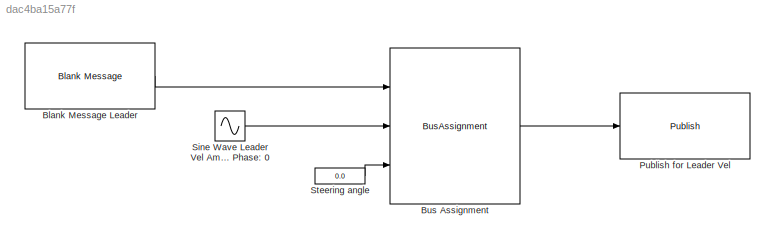
MODEL slx_dac4ba15a77f
KIND model
CONFIG AbsTol = auto
CONFIG FixedStep = auto
CONFIG MaxStep = auto
CONFIG MinStep = auto
CONFIG RelTol = 1e-3
CONFIG SampleTimeConstraint = Unconstrained
CONFIG Solver = FixedStepAuto
CONFIG SolverMode = Auto
CONFIG SolverName = FixedStepAuto
CONFIG StartTime = 0.0
CONFIG StopTime = inf
BLOCK [Reference] Blank Message Leader  REF=robotlib/Blank Message
  Ports = [0, 1]
  SourceBlock = robotlib/Blank Message
  SourceLibraryInfo = This block requires Robotics System Toolbox
  SourceType = ROS Blank Message
BLOCK [BusAssignment] Bus Assignment
  AssignedSignals = Linear.X,Angular.Z
  Ports = [3, 1]
BLOCK [Reference] Publish for Leader Vel  REF=robotlib/Publish
  Ports = [1]
  SourceBlock = robotlib/Publish
  SourceLibraryInfo = This block requires Robotics System Toolbox
  SourceType = ROS Publish
BLOCK [Sin] Sine Wave Leader Vel Amplitude: 1 Bias: 3 Frequency: 5//2*pi rad//s Phase: 0 
  Amplitude = 5
  Bias = 3
  Frequency = 0.7958
  Ports = [0, 1]
  SampleTime = 0
BLOCK [Constant] Steering angle
  Value = 0.0
LINE Blank Message Leader:1 -> Bus Assignment:1
LINE Bus Assignment:1 -> Publish for Leader Vel:1
LINE Sine Wave Leader Vel Amplitude: 1 Bias: 3 Frequency: 5//2*pi rad//s Phase: 0 :1 -> Bus Assignment:2
LINE Steering angle:1 -> Bus Assignment:3
